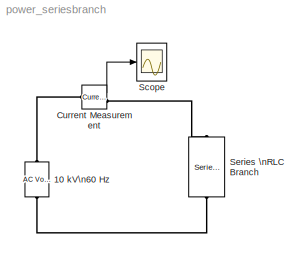
MODEL power_seriesbranch
KIND model
BLOCK [Reference] 10 kV\n60 Hz  REF=powerlib/Electrical\nSources/AC Voltage Source
  Amplitude = 10e3
  AttributesFormatString = \\n
  Description = source block
  Frequency = 60
  Measurements = None
  Phase = 0
  Ports = [0, 0, 0, 0, 0, 1, 1]
  SampleTime = 0
  SourceBlock = powerlib/Electrical\nSources/AC Voltage Source
  SourceType = AC Voltage Source
BLOCK [Reference] Current Measurement  REF=powerlib/Measurements/Current Measurement
  AttributesFormatString = \\n
  OutputType = Magnitude
  PSBequivalent = 0
  PhasorSimulation = off
  Ports = [0, 1, 0, 0, 0, 1, 1]
  SourceBlock = powerlib/Measurements/Current Measurement
  SourceType = Current Measurement
  Tag = PoWeRsYsTeMmEaSuReMeNt
BLOCK [Scope] Scope
  DataFormat = Array
  DeleteFcn = simscope BlockIsBeingDestroyed
  NumInputPorts = 1
  Ports = [1]
  PostSaveFcn = simscope Save
  TickLabels = on
  TimeRange = 0.1
  YMax = 15
  YMin = -15
  ZoomMode = xonly
BLOCK [Reference] Series \nRLC Branch  REF=powerlib/Elements/Series RLC Branch
  AttributesFormatString = \\n
  Capacitance = 2.62e-06
  Inductance = 107.42e-03
  LConnTagsString = __new0
  Measurements = None
  PhysicalDomain = powersysdomain
  PortType = p1
  Ports = [0, 0, 0, 0, 0, 1, 1]
  RConnTagsString = __new0
  Resistance = 1.27
  SourceBlock = powerlib/Elements/Series RLC Branch
  SourceType = Series RLC Branch
  SubClassName = unknown
LINE Current Measurement:1 -> Scope:1
PLINE 10 kV\n60 Hz:LConn1 -- Series \nRLC Branch:RConn1
PLINE 10 kV\n60 Hz:RConn1 -- Current Measurement:LConn1
PLINE Current Measurement:RConn1 -- Series \nRLC Branch:LConn1
